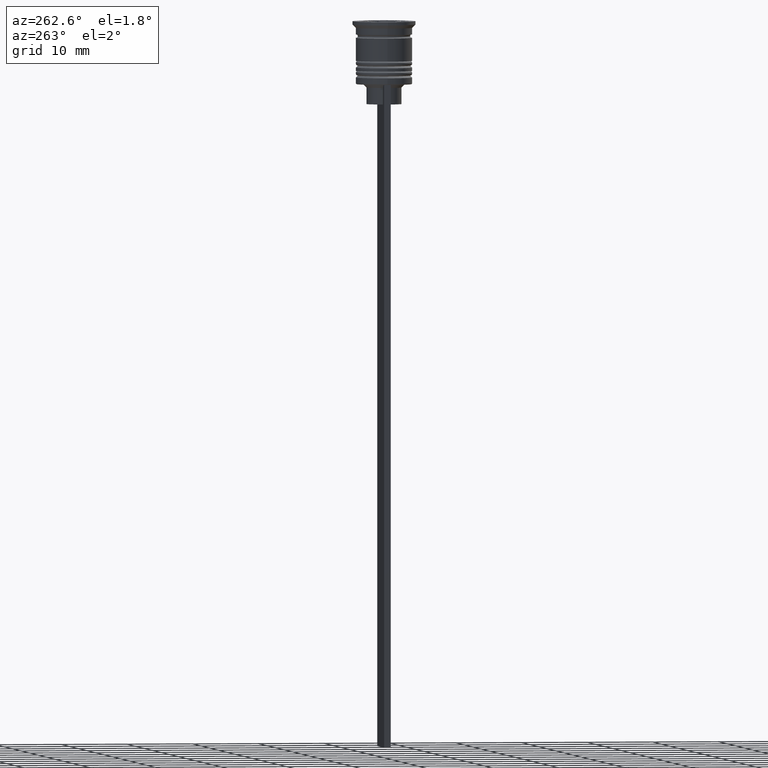
[diagram: clean part render]
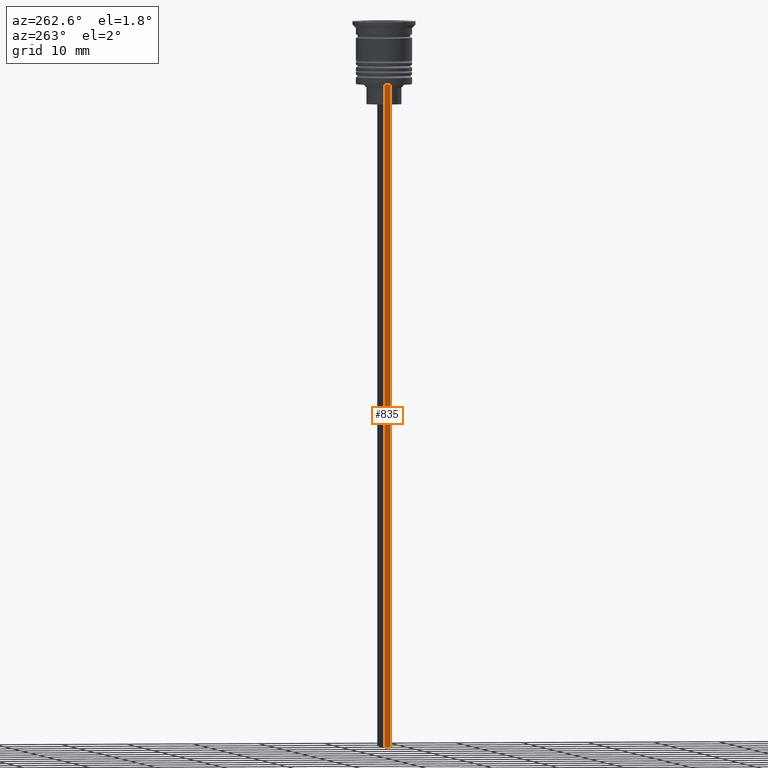
[diagram: same view with one face highlighted and labeled with its STEP entity id]
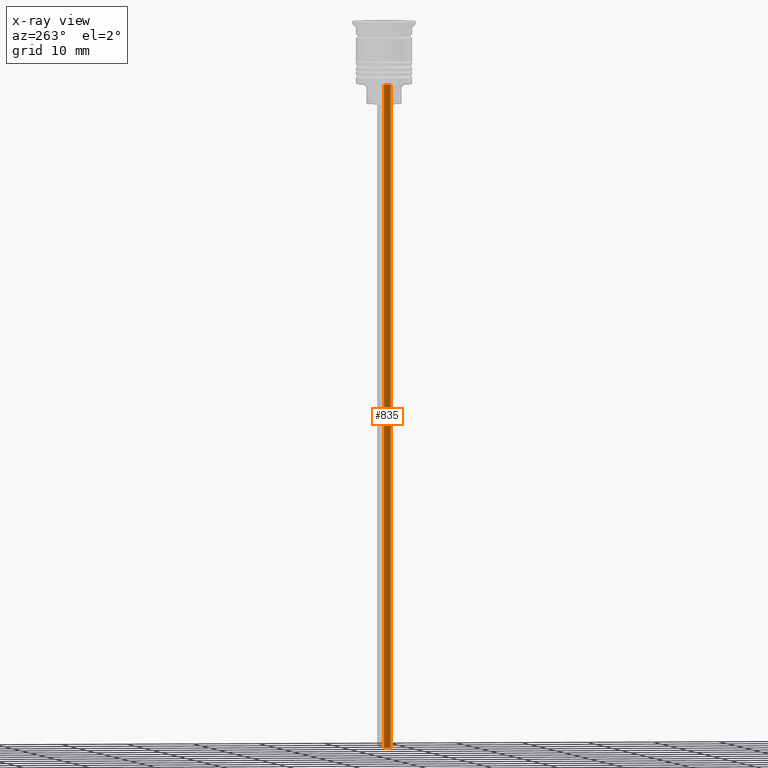
[diagram: x-ray of the same camera — body ghosted, the highlighted face saturated]
A machine part, auxiliary view. The second image highlights one B-rep face of the part: STEP entity #835.
The next image is the same camera in x-ray: the body ghosted, the highlighted face saturated — about 0% of this face is hidden behind the body in this view.
In plain terms, the highlighted planar face has unit normal (-1, 0, 0).
Its self-contained STEP definition (entity closure, byte-faithful):
#11 = CARTESIAN_POINT ( 'NONE',  ( -3.999999999999994671, -0.5000000000000004441, -9.500000000000000000 ) ) ;
#12 = EDGE_CURVE ( 'NONE', #943, #1155, #987, .T. ) ;
#51 = LINE ( 'NONE', #1640, #714 ) ;
#74 = ORIENTED_EDGE ( 'NONE', *, *, #551, .F. ) ;
#244 = EDGE_CURVE ( 'NONE', #1054, #476, #51, .T. ) ;
#251 = ORIENTED_EDGE ( 'NONE', *, *, #244, .F. ) ;
#308 = CARTESIAN_POINT ( 'NONE',  ( -3.999999999999994671, -0.5000000000000004441, -109.5000000000000000 ) ) ;
#345 = LINE ( 'NONE', #308, #1122 ) ;
#449 = DIRECTION ( 'NONE',  ( 0.000000000000000000, 0.000000000000000000, 1.000000000000000000 ) ) ;
#476 = VERTEX_POINT ( 'NONE', #1438 ) ;
#551 = EDGE_CURVE ( 'NONE', #476, #1155, #345, .T. ) ;
#659 = DIRECTION ( 'NONE',  ( -1.000000000000000000, 0.000000000000000000, 0.000000000000000000 ) ) ;
#714 = VECTOR ( 'NONE', #892, 1000.000000000000000 ) ;
#833 = FACE_OUTER_BOUND ( 'NONE', #1621, .T. ) ;
#835 = ADVANCED_FACE ( 'NONE', ( #833 ), #1715, .T. ) ;
#892 = DIRECTION ( 'NONE',  ( 0.000000000000000000, 0.000000000000000000, -1.000000000000000000 ) ) ;
#912 = AXIS2_PLACEMENT_3D ( 'NONE', #1370, #659, #449 ) ;
#916 = VECTOR ( 'NONE', #2005, 1000.000000000000000 ) ;
#943 = VERTEX_POINT ( 'NONE', #1275 ) ;
#987 = LINE ( 'NONE', #1728, #2140 ) ;
#1012 = DIRECTION ( 'NONE',  ( 0.000000000000000000, 0.000000000000000000, -1.000000000000000000 ) ) ;
#1052 = ORIENTED_EDGE ( 'NONE', *, *, #1519, .F. ) ;
#1054 = VERTEX_POINT ( 'NONE', #2062 ) ;
#1122 = VECTOR ( 'NONE', #2368, 1000.000000000000000 ) ;
#1128 = ORIENTED_EDGE ( 'NONE', *, *, #12, .T. ) ;
#1155 = VERTEX_POINT ( 'NONE', #2020 ) ;
#1275 = CARTESIAN_POINT ( 'NONE',  ( -3.999999999999994671, 0.4999999999999997780, -9.500000000000000000 ) ) ;
#1370 = CARTESIAN_POINT ( 'NONE',  ( -3.999999999999994671, -0.5000000000000004441, -1.437742251701450202 ) ) ;
#1438 = CARTESIAN_POINT ( 'NONE',  ( -3.999999999999994671, -0.5000000000000004441, -109.5000000000000000 ) ) ;
#1519 = EDGE_CURVE ( 'NONE', #943, #1054, #1641, .T. ) ;
#1621 = EDGE_LOOP ( 'NONE', ( #1052, #1128, #74, #251 ) ) ;
#1640 = CARTESIAN_POINT ( 'NONE',  ( -3.999999999999994671, -0.5000000000000004441, -1.437742251701450202 ) ) ;
#1641 = LINE ( 'NONE', #11, #916 ) ;
#1715 = PLANE ( 'NONE',  #912 ) ;
#1728 = CARTESIAN_POINT ( 'NONE',  ( -3.999999999999994671, 0.4999999999999995559, -1.437742251701450202 ) ) ;
#2005 = DIRECTION ( 'NONE',  ( 0.000000000000000000, -1.000000000000000000, 0.000000000000000000 ) ) ;
#2020 = CARTESIAN_POINT ( 'NONE',  ( -3.999999999999994671, 0.4999999999999995559, -109.5000000000000000 ) ) ;
#2062 = CARTESIAN_POINT ( 'NONE',  ( -3.999999999999994671, -0.5000000000000004441, -9.500000000000000000 ) ) ;
#2140 = VECTOR ( 'NONE', #1012, 1000.000000000000000 ) ;
#2368 = DIRECTION ( 'NONE',  ( 0.000000000000000000, 1.000000000000000000, 0.000000000000000000 ) ) ;